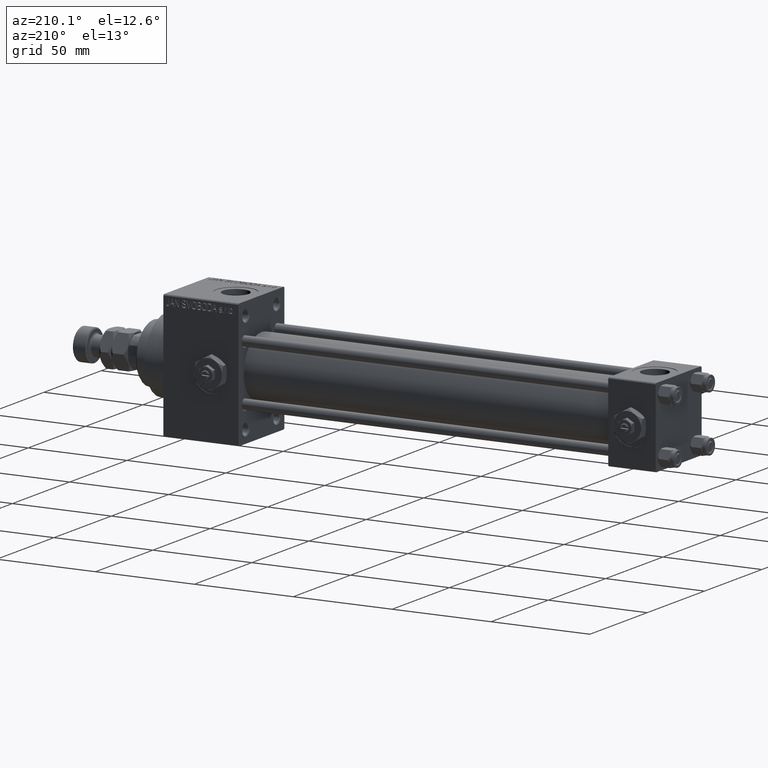
[diagram: clean part render]
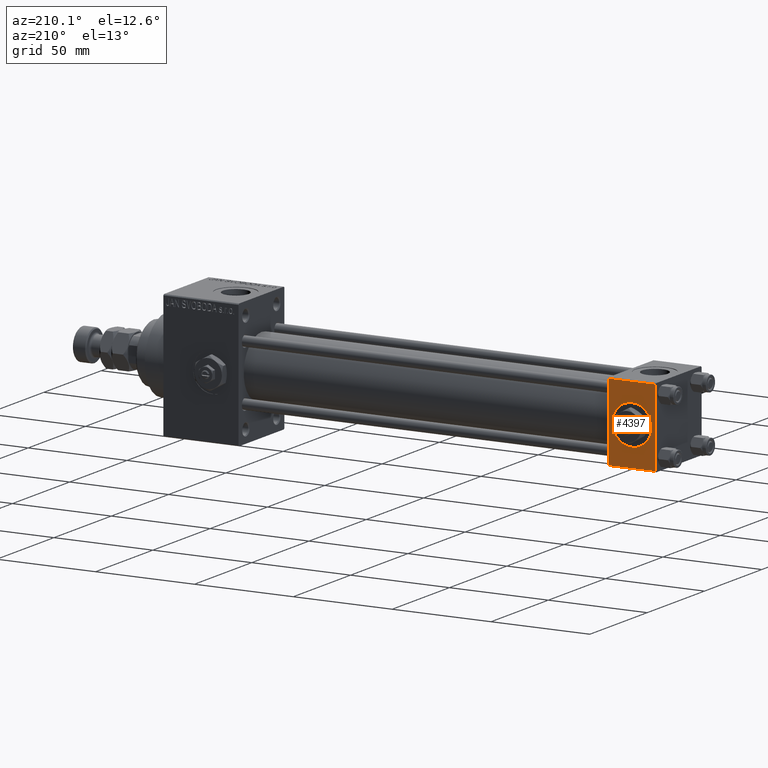
[diagram: same view with one face highlighted and labeled with its STEP entity id]
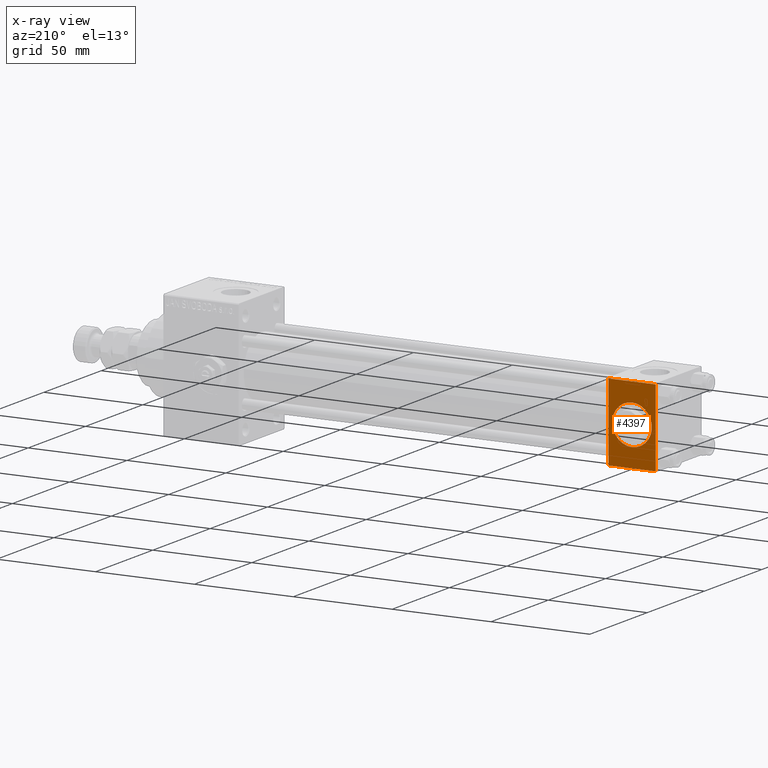
[diagram: x-ray of the same camera — body ghosted, the highlighted face saturated]
A machine part, auxiliary view. The second image highlights one B-rep face of the part: STEP entity #4397.
The next image is the same camera in x-ray: the body ghosted, the highlighted face saturated — about 0% of this face is hidden behind the body in this view.
In plain terms, the highlighted planar face has unit normal (0, 1, 0).
Its self-contained STEP definition (entity closure, byte-faithful):
#997 = LINE ( 'NONE', #39739, #11636 ) ;
#1271 = DIRECTION ( 'NONE',  ( -1.000000000000000000, 0.000000000000000000, 0.000000000000000000 ) ) ;
#2643 = ORIENTED_EDGE ( 'NONE', *, *, #46240, .T. ) ;
#3678 = DIRECTION ( 'NONE',  ( 0.000000000000000000, 0.000000000000000000, -1.000000000000000000 ) ) ;
#4243 = CARTESIAN_POINT ( 'NONE',  ( 12.00000000000000000, 20.00000000000000000, 10.00000000000000000 ) ) ;
#4321 = CARTESIAN_POINT ( 'NONE',  ( 12.00000000000000000, 20.00000000000000000, 0.000000000000000000 ) ) ;
#4397 = ADVANCED_FACE ( 'NONE', ( #10440, #26058 ), #41722, .T. ) ;
#6250 = VECTOR ( 'NONE', #1271, 1000.000000000000000 ) ;
#6898 = EDGE_CURVE ( 'NONE', #34967, #48572, #25352, .T. ) ;
#7086 = LINE ( 'NONE', #11193, #47529 ) ;
#7354 = DIRECTION ( 'NONE',  ( -0.000000000000000000, 1.000000000000000000, 0.000000000000000000 ) ) ;
#7748 = CARTESIAN_POINT ( 'NONE',  ( 24.00000000000000000, 20.00000000000000000, -19.50000000000002132 ) ) ;
#8808 = LINE ( 'NONE', #43203, #12772 ) ;
#10182 = DIRECTION ( 'NONE',  ( 0.000000000000000000, 0.000000000000000000, -1.000000000000000000 ) ) ;
#10440 = FACE_BOUND ( 'NONE', #18253, .T. ) ;
#11193 = CARTESIAN_POINT ( 'NONE',  ( 24.00000000000000000, 20.00000000000000000, 20.00000000000000000 ) ) ;
#11636 = VECTOR ( 'NONE', #3678, 1000.000000000000000 ) ;
#11713 = DIRECTION ( 'NONE',  ( 0.000000000000000000, -0.000000000000000000, 1.000000000000000000 ) ) ;
#11772 = DIRECTION ( 'NONE',  ( 0.000000000000000000, 0.000000000000000000, 1.000000000000000000 ) ) ;
#12772 = VECTOR ( 'NONE', #28536, 1000.000000000000000 ) ;
#13759 = DIRECTION ( 'NONE',  ( 0.000000000000000000, 1.000000000000000000, 0.000000000000000000 ) ) ;
#14051 = CIRCLE ( 'NONE', #42715, 10.00000000000000000 ) ;
#14369 = VERTEX_POINT ( 'NONE', #22699 ) ;
#15840 = ORIENTED_EDGE ( 'NONE', *, *, #23777, .F. ) ;
#16924 = AXIS2_PLACEMENT_3D ( 'NONE', #23732, #7354, #11713 ) ;
#17648 = ORIENTED_EDGE ( 'NONE', *, *, #36562, .T. ) ;
#17898 = EDGE_LOOP ( 'NONE', ( #2643, #38087, #15840, #17648 ) ) ;
#18253 = EDGE_LOOP ( 'NONE', ( #18329, #29064 ) ) ;
#18329 = ORIENTED_EDGE ( 'NONE', *, *, #20134, .F. ) ;
#20134 = EDGE_CURVE ( 'NONE', #48831, #24506, #14051, .T. ) ;
#20522 = AXIS2_PLACEMENT_3D ( 'NONE', #4321, #27889, #11772 ) ;
#22699 = CARTESIAN_POINT ( 'NONE',  ( 0.000000000000000000, 20.00000000000000000, 19.49999999999999289 ) ) ;
#23732 = CARTESIAN_POINT ( 'NONE',  ( 24.00000000000000000, 20.00000000000000000, 20.00000000000000000 ) ) ;
#23777 = EDGE_CURVE ( 'NONE', #14369, #48572, #997, .T. ) ;
#24427 = VERTEX_POINT ( 'NONE', #41141 ) ;
#24506 = VERTEX_POINT ( 'NONE', #25215 ) ;
#25215 = CARTESIAN_POINT ( 'NONE',  ( 12.00000000000000178, 20.00000000000000000, -10.00000000000000000 ) ) ;
#25352 = LINE ( 'NONE', #41029, #6250 ) ;
#25533 = DIRECTION ( 'NONE',  ( 0.000000000000000000, 0.000000000000000000, 1.000000000000000000 ) ) ;
#26058 = FACE_OUTER_BOUND ( 'NONE', #17898, .T. ) ;
#27889 = DIRECTION ( 'NONE',  ( 0.000000000000000000, 1.000000000000000000, 0.000000000000000000 ) ) ;
#28536 = DIRECTION ( 'NONE',  ( 1.000000000000000000, 0.000000000000000000, 0.000000000000000000 ) ) ;
#29064 = ORIENTED_EDGE ( 'NONE', *, *, #46897, .F. ) ;
#34967 = VERTEX_POINT ( 'NONE', #7748 ) ;
#35271 = CIRCLE ( 'NONE', #20522, 10.00000000000000000 ) ;
#36562 = EDGE_CURVE ( 'NONE', #14369, #24427, #8808, .T. ) ;
#36841 = CARTESIAN_POINT ( 'NONE',  ( 12.00000000000000000, 20.00000000000000000, 0.000000000000000000 ) ) ;
#38087 = ORIENTED_EDGE ( 'NONE', *, *, #6898, .T. ) ;
#39739 = CARTESIAN_POINT ( 'NONE',  ( 0.000000000000000000, 20.00000000000000000, 20.00000000000000000 ) ) ;
#41029 = CARTESIAN_POINT ( 'NONE',  ( 24.00000000000000000, 20.00000000000000000, -19.50000000000002132 ) ) ;
#41141 = CARTESIAN_POINT ( 'NONE',  ( 24.00000000000000000, 20.00000000000000000, 19.49999999999999289 ) ) ;
#41722 = PLANE ( 'NONE',  #16924 ) ;
#42715 = AXIS2_PLACEMENT_3D ( 'NONE', #36841, #13759, #25533 ) ;
#43203 = CARTESIAN_POINT ( 'NONE',  ( 24.00000000000000000, 20.00000000000000000, 19.49999999999999289 ) ) ;
#46240 = EDGE_CURVE ( 'NONE', #24427, #34967, #7086, .T. ) ;
#46888 = CARTESIAN_POINT ( 'NONE',  ( 0.000000000000000000, 20.00000000000000000, -19.50000000000002132 ) ) ;
#46897 = EDGE_CURVE ( 'NONE', #24506, #48831, #35271, .T. ) ;
#47529 = VECTOR ( 'NONE', #10182, 1000.000000000000000 ) ;
#48572 = VERTEX_POINT ( 'NONE', #46888 ) ;
#48831 = VERTEX_POINT ( 'NONE', #4243 ) ;